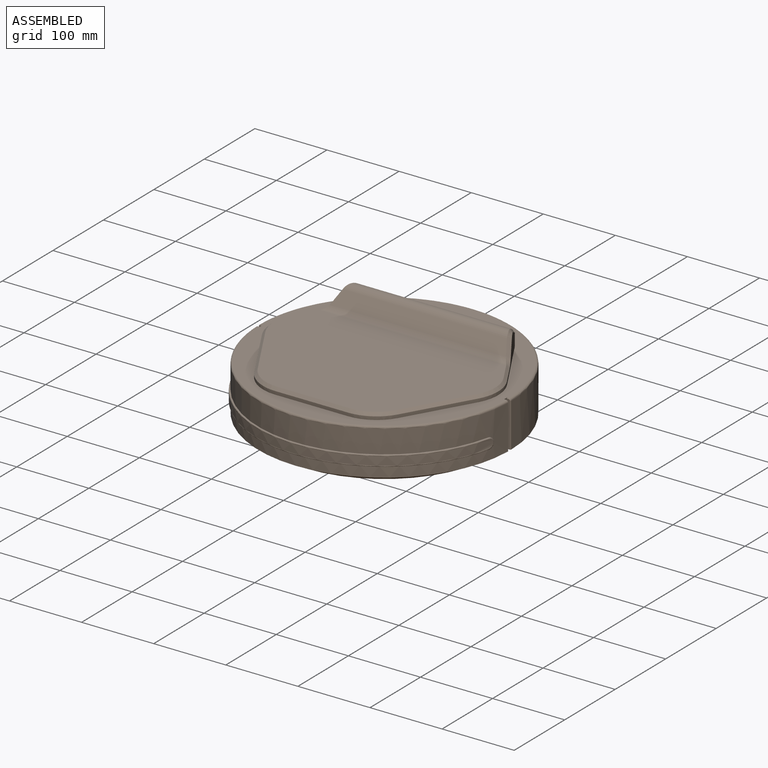
[diagram: assembled view]
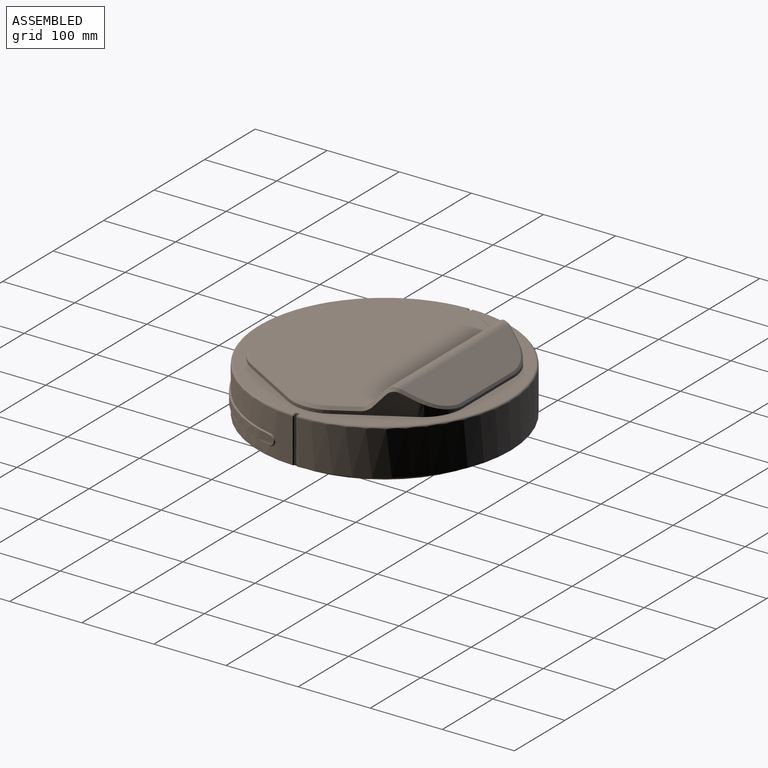
[diagram: assembled view, second angle]
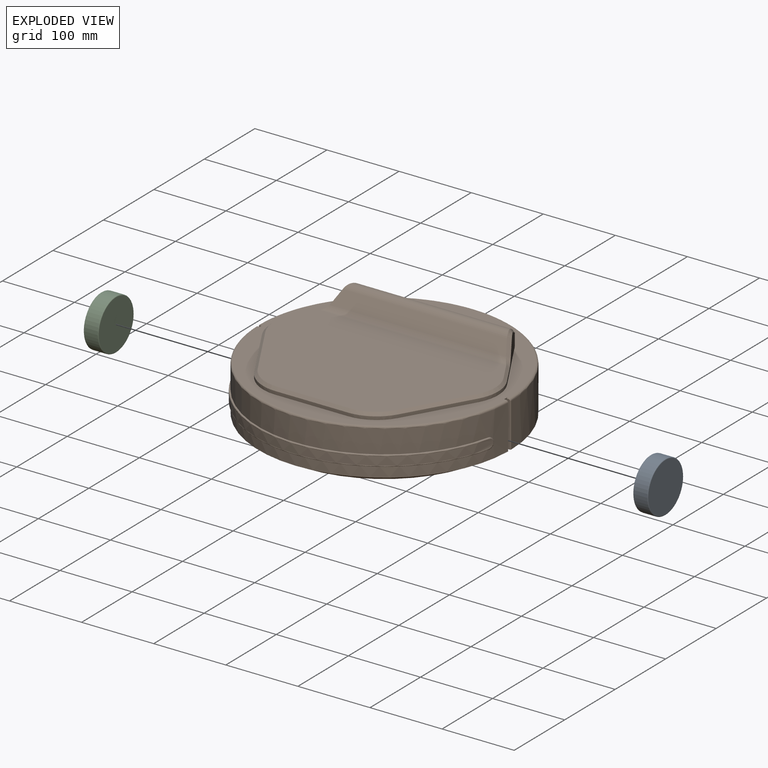
[diagram: exploded view]
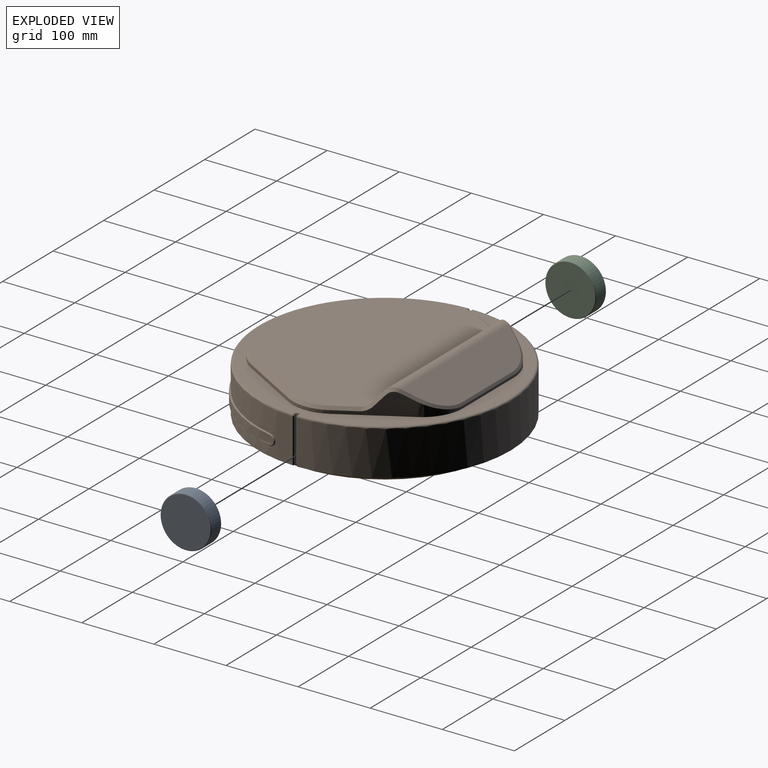
[diagram: exploded view, second angle]
ASSEMBLY  parts=3 mates=2
PART A: 8 faces, bbox 20.6x70.4x70.4 mm
  f0: plane 68.4x68.4mm, normal (-1,0,0), area 3674.6mm2, adj f1,f2
  f1: revolved ~70.4x35.2mm, area 171.9mm2, adj f0,f2,f3
  f2: revolved ~70.4x35.2mm, area 171.9mm2, adj f0,f1,f4
  f3: cylinder r=35.2mm len=70.4mm, axis (1,0,0), area 2056.9mm2, adj f1,f4,f5
  f4: cylinder r=35.2mm len=70.4mm, axis (1,0,0), area 2056.9mm2, adj f2,f3,f6
  f5: revolved ~70.4x35.2mm, area 171.9mm2, adj f3,f6,f7
  f6: revolved ~70.4x35.2mm, area 171.9mm2, adj f4,f5,f7
  f7: plane 68.4x68.4mm, normal (1,0,0), area 3674.5mm2, adj f5,f6
PART B: 159 faces, bbox 351.6x353.4x126.2 mm
  f0: bspline ~2.08x1.97mm, area 3.3mm2, adj f1,f17,f45,f76
  f1: bspline ~5.99x4.88mm, area 16.5mm2, adj f0,f2,f17,f76
  f2: bspline ~4.51x2.68mm, area 11.3mm2, adj f1,f3,f17,f76
  f3: bspline ~2.58x2.48mm, area 5.6mm2, adj f2,f4,f17,f76
  f4: bspline ~4.17x3.93mm, area 11.1mm2, adj f3,f17,f46,f76
  f5: bspline ~2.06x1.89mm, area 3.2mm2, adj f6,f17,f47,f74
  f6: bspline ~6.02x4.84mm, area 16.4mm2, adj f5,f7,f17,f74
  f7: bspline ~6.77x2.69mm, area 16.8mm2, adj f6,f8,f17,f74
  f8: bspline ~4.31x4.1mm, area 11.1mm2, adj f7,f17,f44,f74
  f9: plane 3.87x3.8mm, normal (-0.61,0.35,0.71), area 4.9mm2, adj f16,f21,f22,f52
  f10: plane 213.24x44.84mm, normal (0,0.5,0.87), area 9352.7mm2, adj f11,f28,f29,f30,f31,f32
  f11: cylinder r=14mm len=228.07mm, axis (1,0,0), area 4234.5mm2, adj f10,f12,f26,f34
  f12: plane 243.69x15.91mm, normal (0,-0.77,0.64), area 4884mm2, adj f11,f14,f25,f27,f33,f35
  f13: cylinder r=13mm len=259.28mm, axis (-1,0,0), area 1188.7mm2, adj f14,f16,f22,f37
  f14: cylinder r=14mm len=252.44mm, axis (1,0,0), area 1799.3mm2, adj f12,f13,f23,f24,f36,f38
  f15: plane 3.87x3.8mm, normal (0.61,0.35,0.71), area 4.9mm2, adj f16,f37,f39,f62
  f16: plane 307.55x196.3mm, normal (0,0,1), area 49821.2mm2, adj f9,f13,f15,f18,f19,f20,f21,f39
  f17: cylinder r=177mm len=347.88mm, axis (0,0,1), area 5846.4mm2, adj f0,f1,f2,f3,f4,f5,f6,f7
  f18: cone r=55.12mm half-angle=45deg, axis (0,0,-1), area 314.9mm2, adj f16,f19,f43,f48
  f19: plane 89.16x53.71mm, normal (-0.61,-0.35,0.71), area 547mm2, adj f16,f18,f20,f49
  f20: cone r=55.12mm half-angle=45deg, axis (0,0,-1), area 314.9mm2, adj f16,f19,f21,f50
  f21: plane 30.66x19.94mm, normal (-0.61,0.35,0.71), area 181.3mm2, adj f9,f16,f20,f51
  f22: bspline ~9.01x7.88mm, area 36.2mm2, adj f9,f13,f23,f52
  f23: bspline ~11.09x8.15mm, area 48mm2, adj f14,f22,f24,f52
  f24: bspline ~7.01x4.82mm, area 10.1mm2, adj f14,f23,f25,f53
  f25: plane 17.09x17.06mm, normal (-0.78,-0.24,0.58), area 130.8mm2, adj f12,f24,f27,f53
  f26: bspline ~19.04x11.79mm, area 104.3mm2, adj f11,f27,f28,f54
  f27: bspline ~7.24x4.78mm, area 11.8mm2, adj f12,f25,f26,f54
  f28: plane 18.2x13.86mm, normal (-0.55,0.63,0.55), area 111.1mm2, adj f10,f26,f29,f55
  f29: bspline ~50.46x29.29mm, area 251.7mm2, adj f10,f28,f30,f56
  f30: plane 100.72x3.35mm, normal (0,0.87,0.5), area 389.3mm2, adj f10,f29,f31,f57
  f31: bspline ~50.46x29.29mm, area 251.7mm2, adj f10,f30,f32,f58
  f32: plane 18.2x13.86mm, normal (0.55,0.63,0.55), area 111.1mm2, adj f10,f31,f34,f59
  f33: bspline ~7.25x4.78mm, area 11.8mm2, adj f12,f34,f35,f60
  f34: bspline ~19.04x11.79mm, area 104.3mm2, adj f11,f32,f33,f60
  f35: plane 17.09x17.06mm, normal (0.78,-0.24,0.58), area 130.8mm2, adj f12,f33,f36,f61
  f36: bspline ~7.01x4.81mm, area 10.1mm2, adj f14,f35,f38,f61
  f37: bspline ~9.01x7.88mm, area 36.2mm2, adj f13,f15,f38,f62
  f38: bspline ~11.09x8.15mm, area 48mm2, adj f14,f36,f37,f62
  f39: plane 30.65x19.93mm, normal (0.61,0.35,0.71), area 181.3mm2, adj f15,f16,f40,f63
  f40: cone r=55.12mm half-angle=45deg, axis (0,0,-1), area 314.4mm2, adj f16,f39,f41,f64
  f41: plane 89.17x53.71mm, normal (0.61,-0.35,0.71), area 550.1mm2, adj f16,f40,f42,f65
  f42: cone r=55.12mm half-angle=45deg, axis (0,0,-1), area 314.6mm2, adj f16,f41,f43,f66
  f43: plane 100.72x3.87mm, normal (0,-0.71,0.71), area 550.5mm2, adj f16,f18,f42,f67
  f44: bspline ~4.32x2.6mm, area 8.7mm2, adj f8,f17,f45,f74
  f45: revolved ~345.38x138.5mm, area 1122.2mm2, adj f0,f17,f44,f75
  f46: bspline ~4.25x2.58mm, area 8.6mm2, adj f4,f17,f47,f76
  f47: revolved ~345.38x138.5mm, area 1122.2mm2, adj f5,f17,f46,f77
  f48: cylinder r=56.92mm len=49.3mm, axis (0,0,1), area 270.6mm2, adj f18,f49,f67,f81
  f49: plane 87.23x50.36mm, normal (-0.87,-0.5,0), area 459mm2, adj f19,f48,f50,f81
  f50: cylinder r=56.92mm len=56.92mm, axis (0,0,1), area 273mm2, adj f20,f49,f51,f81
  f51: plane 28.73x16.59mm, normal (-0.87,0.5,0), area 152.3mm2, adj f21,f50,f52,f81
  f52: extruded ~13.09x9.78mm, area 96.5mm2, adj f9,f22,f23,f51,f53,f81
  f53: plane 25.56x13.25mm, normal (-0.86,0.51,0), area 270.7mm2, adj f24,f25,f52,f54,f81
  f54: extruded ~30.52x13.93mm, area 473mm2, adj f26,f27,f53,f55,f81
  f55: plane 29.15x18.19mm, normal (-0.87,0.5,0), area 500.6mm2, adj f28,f54,f56,f81
  f56: cylinder r=56.66mm len=49.19mm, axis (0,0,1), area 513.1mm2, adj f29,f55,f57,f81
  f57: plane 100.72x3.3mm, normal (0,1,0), area 332.1mm2, adj f30,f56,f58,f81
  f58: cylinder r=56.66mm len=49.2mm, axis (0,0,1), area 513.1mm2, adj f31,f57,f59,f81
  f59: plane 29.15x18.19mm, normal (0.87,0.5,0), area 500.6mm2, adj f32,f58,f60,f81
  f60: extruded ~30.52x13.93mm, area 473mm2, adj f33,f34,f59,f61,f81
  f61: plane 25.56x13.26mm, normal (0.86,0.51,0), area 270.8mm2, adj f35,f36,f60,f62,f81
  f62: extruded ~13.09x9.78mm, area 96.4mm2, adj f15,f37,f38,f61,f63,f81
  f63: plane 28.72x16.58mm, normal (0.87,0.5,0), area 152.3mm2, adj f39,f62,f64,f81
  f64: cylinder r=56.92mm len=56.92mm, axis (0,0,1), area 273.2mm2, adj f40,f63,f65,f81
  f65: plane 87.23x50.37mm, normal (0.87,-0.5,0), area 456.3mm2, adj f41,f64,f66,f81
  f66: cylinder r=56.92mm len=49.3mm, axis (0,0,1), area 270.6mm2, adj f42,f65,f67,f81
  f67: plane 100.72x4.54mm, normal (0,-1,0), area 456.9mm2, adj f43,f48,f66,f81
  f68: plane 2.5x1mm, normal (0,-0.71,0.71), area 3.5mm2, adj f69,f81,f87,f88
  f69: bspline ~3.65x3.62mm, area 5.6mm2, adj f68,f85,f86,f87
  f70: plane 2.43x1mm, normal (0,0.71,0.71), area 3.4mm2, adj f71,f81,f88,f89
  f71: bspline ~3.62x3.62mm, area 5.6mm2, adj f70,f72,f73,f89
  f72: revolved ~349.86x170.06mm, area 2527.3mm2, adj f71,f80,f81,f90
  f73: plane 61x1.03mm, normal (0.72,0.7,0), area 87.5mm2, adj f71,f89,f90,f113
  f74: cylinder r=7.5mm len=15mm, axis (-1,0,0), area 6.5mm2, adj f5,f6,f7,f8,f44,f75,f77,f90
  f75: plane 342.45x137mm, normal (0,0,-1), area 236.3mm2, adj f45,f74,f76,f90
  f76: cylinder r=7.5mm len=15mm, axis (-1,0,0), area 7.2mm2, adj f0,f1,f2,f3,f4,f46,f75,f77
  f77: plane 342.45x137mm, normal (0,0,1), area 236.5mm2, adj f47,f74,f76,f90
  f78: plane 61x1.03mm, normal (-0.72,0.7,0), area 87.5mm2, adj f80,f90,f91,f113
  f79: plane 2.43x1mm, normal (0,0.71,0.71), area 3.4mm2, adj f80,f81,f91,f92
  f80: bspline ~3.62x3.62mm, area 5.6mm2, adj f72,f78,f79,f91
  f81: plane 344x344mm, normal (0,0,1), area 21999.5mm2, adj f48,f49,f50,f51,f52,f53,f54,f55
  f82: plane 2.5x1mm, normal (0,-0.71,0.71), area 3.5mm2, adj f81,f83,f92,f93
  f83: bspline ~3.62x3.62mm, area 5.6mm2, adj f82,f84,f85,f93
  f84: plane 61x1.01mm, normal (-0.71,-0.71,0), area 86.5mm2, adj f83,f93,f94,f113
  f85: revolved ~349.99x174.01mm, area 2565.2mm2, adj f69,f81,f83,f94
  f86: plane 61x1.01mm, normal (0.71,-0.71,0), area 86.5mm2, adj f69,f87,f94,f113
  f87: plane 63.02x4.52mm, normal (0,-1,0), area 282.5mm2, adj f68,f69,f86,f88,f113
  f88: plane 64x6mm, normal (1,0,0), area 257mm2, adj f68,f70,f81,f87,f89,f113
  f89: plane 63.02x4.45mm, normal (0,1,0), area 278.1mm2, adj f70,f71,f73,f88,f113
  f90: cylinder r=175mm len=349.86mm, axis (0,0,1), area 25661.4mm2, adj f72,f73,f74,f75,f76,f77,f78,f113
  f91: plane 63.02x4.45mm, normal (0,1,0), area 278.1mm2, adj f78,f79,f80,f92,f113
  f92: plane 64x6mm, normal (-1,0,0), area 257mm2, adj f79,f81,f82,f91,f93,f113
  f93: plane 63.02x4.52mm, normal (0,-1,0), area 282.5mm2, adj f82,f83,f84,f92,f113
  f94: cylinder r=175mm len=349.99mm, axis (0,0,1), area 33413.8mm2, adj f84,f85,f86,f113
  f95: revolved ~72.95x38.49mm, area 316.3mm2, adj f100,f103,f114,f115
  f96: revolved ~2.31x2.07mm, area 6.9mm2, adj f97,f98,f115,f116
  f97: cylinder r=38.5mm len=21mm, axis (-1,0,0), area 46mm2, adj f96,f98,f101,f117
  f98: plane 25.05x9.49mm, normal (0,0,-1), area 234.2mm2, adj f96,f97,f99,f101,f115,f119
  f99: plane 25x15mm, normal (0,1,0), area 375mm2, adj f98,f100,f115,f119
  f100: plane 25.44x5.89mm, normal (0,0,1), area 134.3mm2, adj f95,f99,f102,f103,f115,f119
  f101: revolved ~2.31x2.07mm, area 6.9mm2, adj f97,f98,f118,f119
  f102: revolved ~72.95x38.49mm, area 316.3mm2, adj f100,f103,f119,f120
  f103: cylinder r=38.5mm len=72.95mm, axis (-1,0,0), area 2165.8mm2, adj f95,f100,f102,f121
  f104: revolved ~72.95x38.49mm, area 316.3mm2, adj f109,f112,f122,f123
  f105: revolved ~2.31x2.07mm, area 6.9mm2, adj f106,f107,f123,f124
  f106: cylinder r=38.5mm len=21mm, axis (-1,0,0), area 46mm2, adj f105,f107,f110,f125
  f107: plane 25.05x9.49mm, normal (0,0,-1), area 234.2mm2, adj f105,f106,f108,f110,f123,f127
  f108: plane 25x15mm, normal (0,1,0), area 375mm2, adj f107,f109,f123,f127
  f109: plane 25.44x5.89mm, normal (0,0,1), area 134.3mm2, adj f104,f108,f111,f112,f123,f127
  f110: revolved ~2.31x2.07mm, area 6.9mm2, adj f106,f107,f126,f127
  f111: revolved ~72.95x38.49mm, area 316.3mm2, adj f109,f112,f127,f128
  f112: cylinder r=38.5mm len=72.95mm, axis (-1,0,0), area 2165.8mm2, adj f104,f109,f111,f129
  f113: plane 350x349.99mm, normal (0,0,-1), area 9595.6mm2, adj f73,f78,f84,f86,f87,f88,f89,f90
  f114: cylinder r=2mm len=22mm, axis (0,0,1), area 69.1mm2, adj f95,f115,f121,f142
  f115: plane 73x58.51mm, normal (-1,0,0), area 3610.2mm2, adj f95,f96,f98,f99,f100,f114,f116,f143
  f116: cylinder r=2mm len=22mm, axis (0,0,-1), area 69.1mm2, adj f96,f115,f117,f144
  f117: plane 22x21mm, normal (0,1,0), area 462mm2, adj f97,f116,f118,f145
  f118: cylinder r=2mm len=22mm, axis (0,0,-1), area 69.1mm2, adj f101,f117,f119,f146
  f119: plane 73x58.51mm, normal (1,0,0), area 3610.2mm2, adj f98,f99,f100,f101,f102,f118,f120,f147
  f120: cylinder r=2mm len=22mm, axis (0,0,1), area 69.1mm2, adj f102,f119,f121,f148
  f121: plane 22x21mm, normal (0,-1,0), area 462mm2, adj f103,f114,f120,f149
  f122: cylinder r=2mm len=22mm, axis (0,0,-1), area 69.1mm2, adj f104,f123,f129,f150
  f123: plane 73x58.51mm, normal (-1,0,0), area 3610.2mm2, adj f104,f105,f107,f108,f109,f122,f124,f151
  f124: cylinder r=2mm len=22mm, axis (0,0,1), area 69.1mm2, adj f105,f123,f125,f152
  f125: plane 22x21mm, normal (0,1,0), area 462mm2, adj f106,f124,f126,f153
  f126: cylinder r=2mm len=22mm, axis (0,0,1), area 69.1mm2, adj f110,f125,f127,f154
  f127: plane 73x58.51mm, normal (1,0,0), area 3610.2mm2, adj f107,f108,f109,f110,f111,f126,f128,f155
  f128: cylinder r=2mm len=22mm, axis (0,0,-1), area 69.1mm2, adj f111,f127,f129,f156
  f129: plane 22x21mm, normal (0,-1,0), area 462mm2, adj f112,f122,f128,f157
  f130: cone r=160.81mm half-angle=45deg, axis (0,0,1), area 7843.9mm2, adj f113,f131,f158
  f131: cone r=160.81mm half-angle=45deg, axis (0,0,1), area 7843.9mm2, adj f113,f130,f158
  f132: plane 20.62x8.5mm, normal (1,0,0), area 131.4mm2, adj f133,f158
  f133: revolved ~33.76x15.76mm, area 424.1mm2, adj f132,f134,f158
  f134: cylinder r=17mm len=33.76mm, axis (-1,0,0), area 222.3mm2, adj f133,f136,f158
  f135: plane 20.62x8.5mm, normal (-1,0,0), area 131.4mm2, adj f136,f158
  f136: revolved ~33.76x15.76mm, area 424.1mm2, adj f134,f135,f158
  f137: plane 19.42x6.5mm, normal (1,0,0), area 91.3mm2, adj f138,f158
  f138: revolved ~33.05x14.53mm, area 377.4mm2, adj f137,f139,f158
  f139: cylinder r=17mm len=33.05mm, axis (-1,0,0), area 204mm2, adj f138,f141,f158
  f140: plane 19.42x6.5mm, normal (-1,0,0), area 91.3mm2, adj f141,f158
  f141: revolved ~33.05x14.53mm, area 377.4mm2, adj f139,f140,f158
  f142: revolved ~3x3mm, area 5.8mm2, adj f114,f143,f149,f158
  f143: cylinder r=1mm len=73mm, axis (0,1,0), area 114.7mm2, adj f115,f142,f144,f158
  f144: revolved ~3x3mm, area 5.8mm2, adj f116,f143,f145,f158
  f145: cylinder r=1mm len=21mm, axis (1,0,0), area 33mm2, adj f117,f144,f146,f158
  f146: revolved ~3x3mm, area 5.8mm2, adj f118,f145,f147,f158
  f147: cylinder r=1mm len=73mm, axis (0,-1,0), area 114.7mm2, adj f119,f146,f148,f158
  f148: revolved ~3x3mm, area 5.8mm2, adj f120,f147,f149,f158
  f149: cylinder r=1mm len=21mm, axis (-1,0,0), area 33mm2, adj f121,f142,f148,f158
  f150: revolved ~3x3mm, area 5.8mm2, adj f122,f151,f157,f158
  f151: cylinder r=1mm len=73mm, axis (0,1,0), area 114.7mm2, adj f123,f150,f152,f158
  f152: revolved ~3x3mm, area 5.8mm2, adj f124,f151,f153,f158
  f153: cylinder r=1mm len=21mm, axis (1,0,0), area 33mm2, adj f125,f152,f154,f158
  f154: revolved ~3x3mm, area 5.8mm2, adj f126,f153,f155,f158
  f155: cylinder r=1mm len=73mm, axis (0,-1,0), area 114.7mm2, adj f127,f154,f156,f158
  f156: revolved ~3x3mm, area 5.8mm2, adj f128,f155,f157,f158
  f157: cylinder r=1mm len=21mm, axis (-1,0,0), area 33mm2, adj f129,f150,f156,f158
  f158: plane 311.36x311.36mm, normal (0,0,-1), area 70131.3mm2, adj f130,f131,f132,f133,f134,f135,f136,f137
PART C: same geometry as A
PLACE A t=(114.96,-2,-31.69)mm
PLACE B at identity fixed
PLACE C t=(-114.96,-2,-31.69)mm
MATE parallel B.f106 <-> C.f4  axis (-1,0,0) through (-114.96,-2,-31.69)mm
MATE planar B.f106 <-> A.f4  axis (-1,0,0) through (114.96,-2,-31.69)mm
